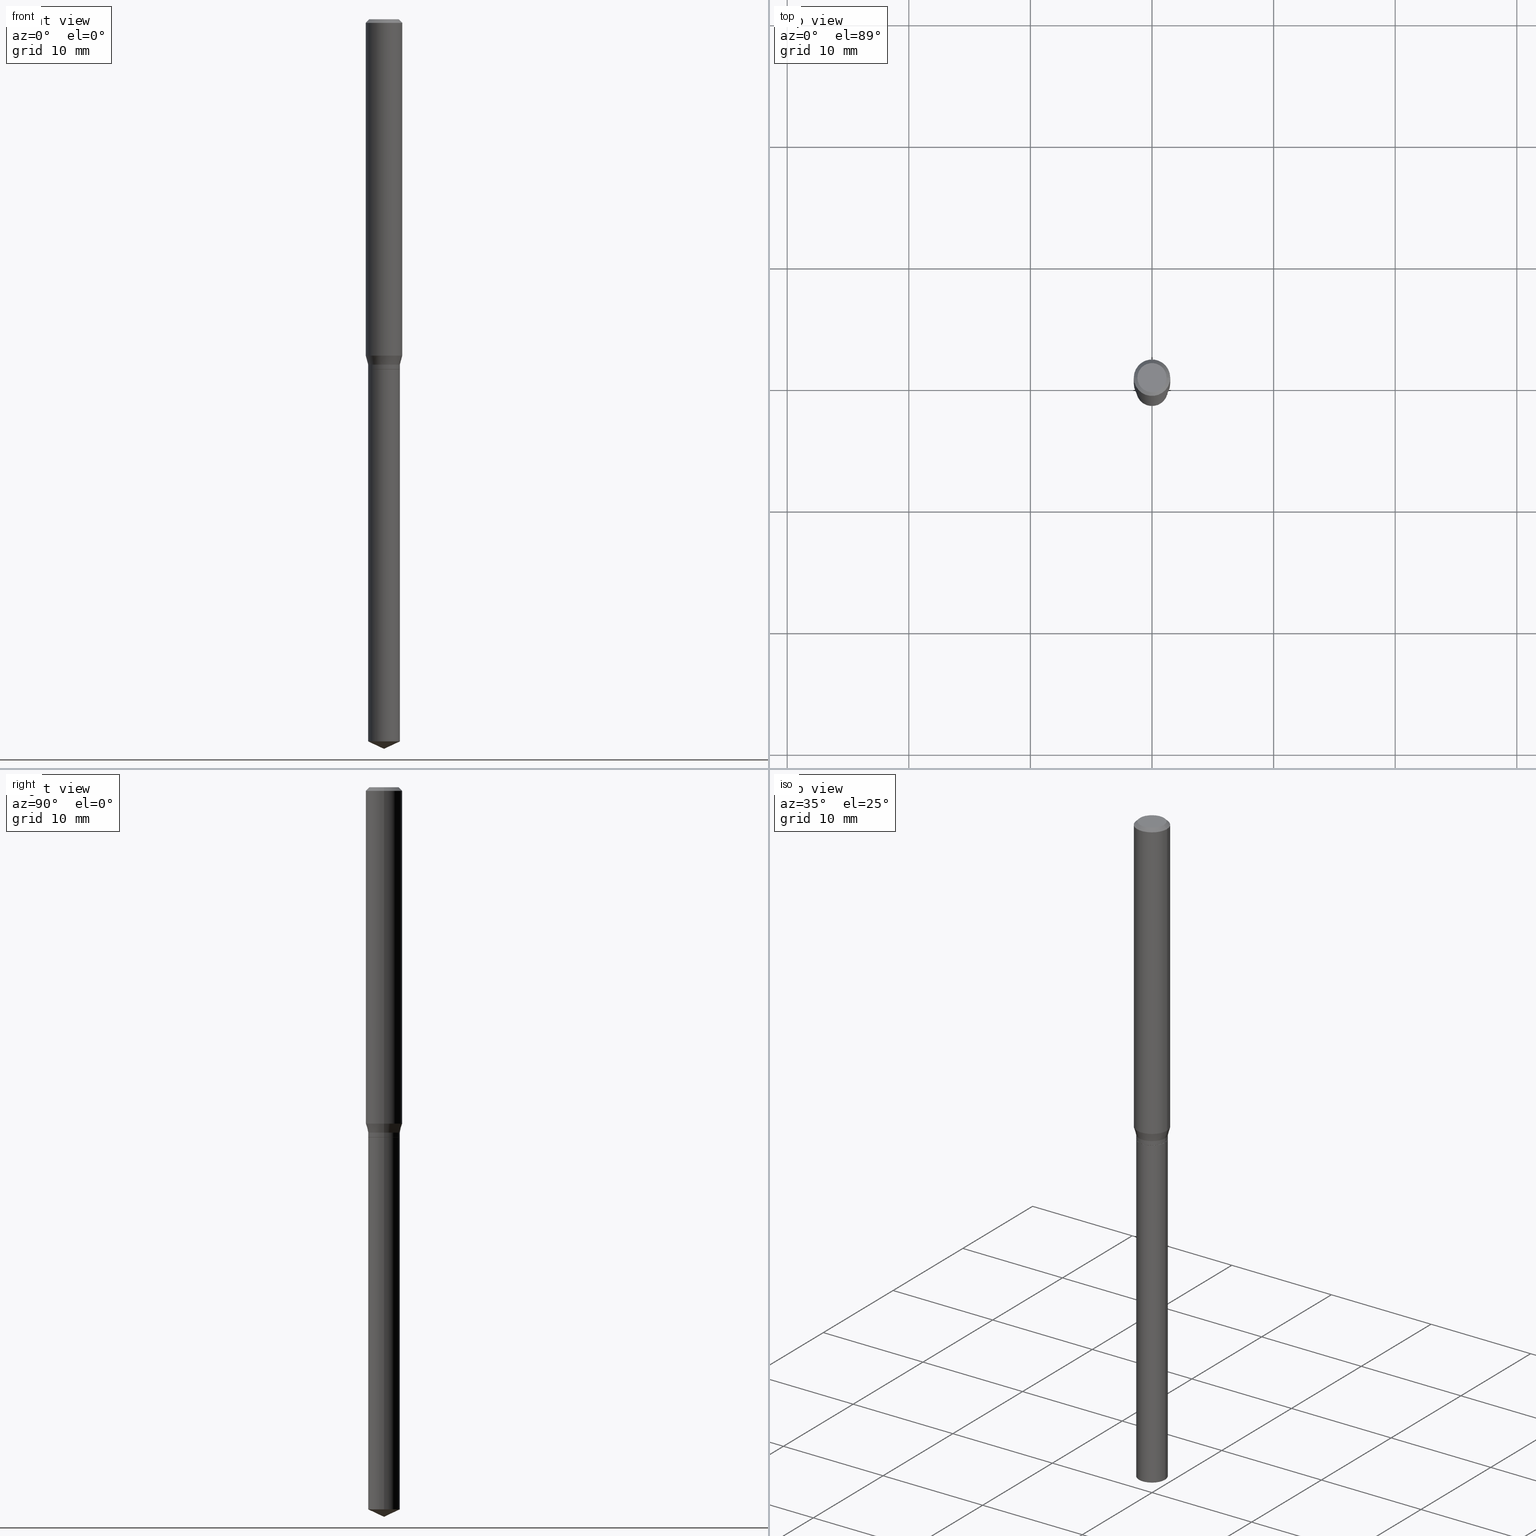
[diagram: canonical four-view strip — front | top / right | iso, engineering-drawing reading convention]
A machine part, canonical four-view strip (front | top / right | iso — engineering-drawing reading convention). The complete STEP part file that produces these views, byte-faithful:
ISO-10303-21;
HEADER;
FILE_DESCRIPTION (( 'STEP AP203' ),
    '1' );
FILE_NAME ('07673.STEP',
    '2024-04-24T00:47:42',
    ( '' ),
    ( '' ),
    'SwSTEP 2.0',
    'SolidWorks 2023',
    '' );
FILE_SCHEMA (( 'CONFIG_CONTROL_DESIGN' ));
ENDSEC;

DATA;
#1 = ORIENTED_EDGE ( 'NONE', *, *, #66, .T. ) ;
#2 = VECTOR ( 'NONE', #305, 39.37007874015748143 ) ;
#3 = ORIENTED_EDGE ( 'NONE', *, *, #355, .F. ) ;
#4 = CARTESIAN_POINT ( 'NONE',  ( 2.771694344930234709E-29, -3.957244949444822062E-15, -1.133400000000000185 ) ) ;
#5 = CARTESIAN_POINT ( 'NONE',  ( 0.000000000000000000, 0.000000000000000000, 0.000000000000000000 ) ) ;
#6 = DIRECTION ( 'NONE',  ( -2.445468806185136597E-29, 3.491481338843145583E-15, 1.000000000000000000 ) ) ;
#7 = FACE_OUTER_BOUND ( 'NONE', #271, .T. ) ;
#8 = ADVANCED_FACE ( 'NONE', ( #281 ), #90, .T. ) ;
#9 = AXIS2_PLACEMENT_3D ( 'NONE', #337, #448, #486 ) ;
#10 = CARTESIAN_POINT ( 'NONE',  ( -9.050161304213721862E-28, 1.292123180114298356E-13, 37.00787874015748002 ) ) ;
#11 = DIRECTION ( 'NONE',  ( -1.000000000000000000, 6.982962677686265922E-15, -4.876176775795935793E-29 ) ) ;
#12 = CARTESIAN_POINT ( 'NONE',  ( 5.718300963366841396E-29, -8.164218268900958475E-15, -2.338325047902463982 ) ) ;
#13 = AXIS2_PLACEMENT_3D ( 'NONE', #439, #17, #187 ) ;
#14 = SECURITY_CLASSIFICATION_LEVEL ( 'unclassified' ) ;
#15 = DIRECTION ( 'NONE',  ( 1.000000000000000000, -6.982962677686266711E-15, 4.876185090822587894E-29 ) ) ;
#16 = ORIENTED_EDGE ( 'NONE', *, *, #367, .F. ) ;
#17 = DIRECTION ( 'NONE',  ( -2.445468806185136597E-29, 3.491481338843145583E-15, 1.000000000000000000 ) ) ;
#18 = DIRECTION ( 'NONE',  ( 1.000000000000000000, -6.982962677686263555E-15, 0.000000000000000000 ) ) ;
#19 = VECTOR ( 'NONE', #476, 39.37007874015748854 ) ;
#20 = ORIENTED_EDGE ( 'NONE', *, *, #237, .F. ) ;
#21 = ORIENTED_EDGE ( 'NONE', *, *, #164, .T. ) ;
#22 = DIRECTION ( 'NONE',  ( -2.445468806185136877E-29, 3.491481338843145188E-15, 1.000000000000000000 ) ) ;
#23 = ORIENTED_EDGE ( 'NONE', *, *, #80, .T. ) ;
#24 = PRODUCT_RELATED_PRODUCT_CATEGORY ( 'detail', '', ( #234 ) ) ;
#25 = CARTESIAN_POINT ( 'NONE',  ( 0.05120000000000002327, -8.521745957998495027E-15, -2.338325047902463982 ) ) ;
#26 = DIRECTION ( 'NONE',  ( -2.445468806185136597E-29, 3.491481338843145583E-15, 1.000000000000000000 ) ) ;
#27 = DIRECTION ( 'NONE',  ( -2.445468806185136597E-29, 3.491481338843145583E-15, 1.000000000000000000 ) ) ;
#28 = EDGE_LOOP ( 'NONE', ( #64, #147, #146, #119 ) ) ;
#29 = AXIS2_PLACEMENT_3D ( 'NONE', #316, #425, #207 ) ;
#30 = CARTESIAN_POINT ( 'NONE',  ( -0.05120000000000000939, -5.697806598798429954E-15, -1.133900000000000352 ) ) ;
#31 = DIRECTION ( 'NONE',  ( -2.445468806185136597E-29, 3.491481338843145583E-15, 1.000000000000000000 ) ) ;
#32 = DIMENSIONAL_EXPONENTS ( 1.000000000000000000, 0.000000000000000000, 0.000000000000000000, 0.000000000000000000, 0.000000000000000000, 0.000000000000000000, 0.000000000000000000 ) ;
#33 = ORIENTED_EDGE ( 'NONE', *, *, #145, .F. ) ;
#34 = DIRECTION ( 'NONE',  ( 1.000000000000000000, 0.000000000000000000, 0.000000000000000000 ) ) ;
#35 = LOCAL_TIME ( 20, 47, 42.00000000000000000, #364 ) ;
#36 = CIRCLE ( 'NONE', #383, 0.05120000000000000939 ) ;
#37 = ORIENTED_EDGE ( 'NONE', *, *, #432, .T. ) ;
#38 = CIRCLE ( 'NONE', #9, 0.05070000000000000201 ) ;
#39 = FACE_OUTER_BOUND ( 'NONE', #28, .T. ) ;
#40 = CC_DESIGN_APPROVAL ( #91, ( #219 ) ) ;
#41 = CARTESIAN_POINT ( 'NONE',  ( 2.888098660104665518E-31, -4.123439461173782112E-17, -0.01181000000000007738 ) ) ;
#42 = PRODUCT_DEFINITION_FORMATION_WITH_SPECIFIED_SOURCE ( 'ANY', '', #234, .NOT_KNOWN. ) ;
#43 = DIRECTION ( 'NONE',  ( -2.445468806185136597E-29, 3.491481338843145583E-15, 1.000000000000000000 ) ) ;
#44 = MANIFOLD_SOLID_BREP ( 'Body-Move/Copy2[1]', #296 ) ;
#45 = MANIFOLD_SOLID_BREP ( 'Body-Move/Copy2[2]', #72 ) ;
#46 = ADVANCED_FACE ( 'NONE', ( #381 ), #275, .T. ) ;
#47 = ORIENTED_EDGE ( 'NONE', *, *, #289, .F. ) ;
#48 = PERSON_AND_ORGANIZATION ( #174, #88 ) ;
#49 = CC_DESIGN_PERSON_AND_ORGANIZATION_ASSIGNMENT ( #283, #358, ( #234 ) ) ;
#50 = APPROVAL_DATE_TIME ( #290, #327 ) ;
#51 = PERSON_AND_ORGANIZATION_ROLE ( 'creator' ) ;
#52 = CIRCLE ( 'NONE', #341, 0.04724000000000000421 ) ;
#53 = CARTESIAN_POINT ( 'NONE',  ( -0.05120000000000001633, -3.567435532761269015E-15, -1.133400000000000185 ) ) ;
#54 = CIRCLE ( 'NONE', #29, 0.05070000000000000201 ) ;
#55 = EDGE_CURVE ( 'NONE', #480, #446, #452, .T. ) ;
#56 = ADVANCED_FACE ( 'NONE', ( #455 ), #121, .T. ) ;
#57 = EDGE_CURVE ( 'NONE', #480, #81, #128, .T. ) ;
#58 = EDGE_LOOP ( 'NONE', ( #332, #47 ) ) ;
#59 = SHAPE_DEFINITION_REPRESENTATION ( #149, #224 ) ;
#60 = EDGE_LOOP ( 'NONE', ( #37, #206, #111, #232 ) ) ;
#61 = CIRCLE ( 'NONE', #92, 0.05905000000000013710 ) ;
#62 = ORIENTED_EDGE ( 'NONE', *, *, #142, .F. ) ;
#63 = DIRECTION ( 'NONE',  ( -2.445468806185136597E-29, 3.491481338843145583E-15, 1.000000000000000000 ) ) ;
#64 = ORIENTED_EDGE ( 'NONE', *, *, #55, .T. ) ;
#65 = FACE_OUTER_BOUND ( 'NONE', #113, .T. ) ;
#66 = EDGE_CURVE ( 'NONE', #246, #446, #422, .T. ) ;
#67 = CYLINDRICAL_SURFACE ( 'NONE', #418, 0.05120000000000000939 ) ;
#68 = LINE ( 'NONE', #373, #434 ) ;
#69 = VERTEX_POINT ( 'NONE', #387 ) ;
#70 = CC_DESIGN_APPROVAL ( #327, ( #42 ) ) ;
#71 = CARTESIAN_POINT ( 'NONE',  ( -0.05120000000000002327, -7.800420388191787803E-15, -2.338325047902463982 ) ) ;
#72 = CLOSED_SHELL ( 'NONE', ( #443, #89, #56, #77, #312, #46, #8, #348, #393, #105, #396, #201 ) ) ;
#73 = DIRECTION ( 'NONE',  ( 1.000000000000000000, -6.982962677686263555E-15, 0.000000000000000000 ) ) ;
#74 = CIRCLE ( 'NONE', #334, 0.05120000000000001633 ) ;
#75 = CC_DESIGN_PERSON_AND_ORGANIZATION_ASSIGNMENT ( #218, #51, ( #42 ) ) ;
#76 = CARTESIAN_POINT ( 'NONE',  ( -0.04724000000000000421, 3.504923541997677355E-16, -3.380025165670481712E-19 ) ) ;
#77 = ADVANCED_FACE ( 'NONE', ( #39 ), #156, .T. ) ;
#78 = FACE_OUTER_BOUND ( 'NONE', #240, .T. ) ;
#79 = ORIENTED_EDGE ( 'NONE', *, *, #388, .F. ) ;
#80 = EDGE_CURVE ( 'NONE', #195, #408, #109, .T. ) ;
#81 = VERTEX_POINT ( 'NONE', #357 ) ;
#82 = DIRECTION ( 'NONE',  ( 0.000000000000000000, 0.000000000000000000, 1.000000000000000000 ) ) ;
#83 = EDGE_LOOP ( 'NONE', ( #370, #440, #297, #79 ) ) ;
#84 = DIRECTION ( 'NONE',  ( -1.000000000000000000, 6.982962677686265922E-15, -4.876176775795935793E-29 ) ) ;
#85 = LINE ( 'NONE', #247, #110 ) ;
#86 = ORIENTED_EDGE ( 'NONE', *, *, #237, .T. ) ;
#87 = FACE_OUTER_BOUND ( 'NONE', #60, .T. ) ;
#88 = ORGANIZATION ( 'UNSPECIFIED', 'UNSPECIFIED', '' ) ;
#89 = ADVANCED_FACE ( 'NONE', ( #457 ), #127, .T. ) ;
#90 = CONICAL_SURFACE ( 'NONE', #317, 0.05120000000000000939, 0.2617993877991499074 ) ;
#91 = APPROVAL ( #140, 'UNSPECIFIED' ) ;
#92 = AXIS2_PLACEMENT_3D ( 'NONE', #180, #339, #300 ) ;
#93 = LINE ( 'NONE', #198, #188 ) ;
#94 = APPLICATION_CONTEXT ( 'configuration controlled 3d designs of mechanical parts and assemblies' ) ;
#95 = DESIGN_CONTEXT ( 'detailed design', #274, 'design' ) ;
#96 = COORDINATED_UNIVERSAL_TIME_OFFSET ( 5, 0, .BEHIND. ) ;
#97 = APPROVAL_ROLE ( '' ) ;
#98 = CARTESIAN_POINT ( 'NONE',  ( -9.050161304213721862E-28, 1.292123180114298356E-13, 37.00787874015748002 ) ) ;
#99 = DATE_AND_TIME ( #257, #176 ) ;
#100 = CIRCLE ( 'NONE', #377, 0.05120000000000000939 ) ;
#101 = AXIS2_PLACEMENT_3D ( 'NONE', #320, #122, #117 ) ;
#102 = EDGE_CURVE ( 'NONE', #374, #441, #36, .T. ) ;
#103 = EDGE_LOOP ( 'NONE', ( #236, #86 ) ) ;
#104 = LINE ( 'NONE', #266, #362 ) ;
#105 = ADVANCED_FACE ( 'NONE', ( #137 ), #181, .F. ) ;
#106 = CARTESIAN_POINT ( 'NONE',  ( 2.735256859718075615E-29, -3.905221877496058889E-15, -1.118500000000000050 ) ) ;
#107 = ORIENTED_EDGE ( 'NONE', *, *, #289, .T. ) ;
#108 = DIRECTION ( 'NONE',  ( -2.445468806185136597E-29, 3.491481338843145583E-15, 1.000000000000000000 ) ) ;
#109 = CIRCLE ( 'NONE', #467, 0.05905000000000000526 ) ;
#110 = VECTOR ( 'NONE', #400, 39.37007874015748854 ) ;
#111 = ORIENTED_EDGE ( 'NONE', *, *, #329, .F. ) ;
#112 =( LENGTH_UNIT ( ) NAMED_UNIT ( * ) SI_UNIT ( $, .METRE. ) );
#113 = EDGE_LOOP ( 'NONE', ( #294, #33, #338, #488 ) ) ;
#114 = LINE ( 'NONE', #307, #244 ) ;
#115 =( NAMED_UNIT ( * ) SI_UNIT ( $, .STERADIAN. ) SOLID_ANGLE_UNIT ( ) );
#116 = ORIENTED_EDGE ( 'NONE', *, *, #66, .F. ) ;
#117 = DIRECTION ( 'NONE',  ( 1.000000000000000000, -6.982962677686263555E-15, 0.000000000000000000 ) ) ;
#118 = DIRECTION ( 'NONE',  ( 1.000000000000000000, -6.982962677686263555E-15, 0.000000000000000000 ) ) ;
#119 = ORIENTED_EDGE ( 'NONE', *, *, #57, .F. ) ;
#120 = AXIS2_PLACEMENT_3D ( 'NONE', #106, #226, #18 ) ;
#121 = CYLINDRICAL_SURFACE ( 'NONE', #471, 0.05905000000000006771 ) ;
#122 = DIRECTION ( 'NONE',  ( -2.445468806185136597E-29, 3.491481338843145583E-15, 1.000000000000000000 ) ) ;
#123 = LOCAL_TIME ( 20, 47, 42.00000000000000000, #96 ) ;
#124 = ORIENTED_EDGE ( 'NONE', *, *, #367, .T. ) ;
#125 = DIRECTION ( 'NONE',  ( 2.438088387897960049E-29, -3.491481338843145188E-15, -1.000000000000000000 ) ) ;
#126 = APPROVAL ( #487, 'UNSPECIFIED' ) ;
#127 = CONICAL_SURFACE ( 'NONE', #148, 0.05905000000000000526, 0.7853981633974452814 ) ;
#128 = LINE ( 'NONE', #389, #361 ) ;
#129 = CARTESIAN_POINT ( 'NONE',  ( 6.605419282153479909E-30, -6.984032135442277648E-15, -1.133900000000000130 ) ) ;
#130 = DATE_AND_TIME ( #165, #185 ) ;
#131 = CC_DESIGN_DATE_AND_TIME_ASSIGNMENT ( #130, #285, ( #384 ) ) ;
#132 = CARTESIAN_POINT ( 'NONE',  ( 0.000000000000000000, 0.000000000000000000, 0.000000000000000000 ) ) ;
#133 = DIRECTION ( 'NONE',  ( 1.000000000000000000, -6.982962677686266711E-15, 4.876185090822587894E-29 ) ) ;
#134 = PERSON_AND_ORGANIZATION_ROLE ( 'creator' ) ;
#135 = CIRCLE ( 'NONE', #120, 0.05120000000000000939 ) ;
#136 = DIRECTION ( 'NONE',  ( -2.445468806185136597E-29, 3.491481338843145583E-15, 1.000000000000000000 ) ) ;
#137 = FACE_OUTER_BOUND ( 'NONE', #103, .T. ) ;
#138 = DATE_AND_TIME ( #220, #123 ) ;
#139 = CARTESIAN_POINT ( 'NONE',  ( 0.05120000000000001633, -4.314772638542359403E-15, -1.133400000000000185 ) ) ;
#140 = APPROVAL_STATUS ( 'not_yet_approved' ) ;
#141 = AXIS2_PLACEMENT_3D ( 'NONE', #313, #278, #241 ) ;
#142 = EDGE_CURVE ( 'NONE', #69, #477, #171, .T. ) ;
#143 = CARTESIAN_POINT ( 'NONE',  ( 2.771694344930234709E-29, -3.957244949444822062E-15, -1.133400000000000185 ) ) ;
#144 = ORIENTED_EDGE ( 'NONE', *, *, #154, .T. ) ;
#145 = EDGE_CURVE ( 'NONE', #306, #366, #52, .T. ) ;
#146 = ORIENTED_EDGE ( 'NONE', *, *, #262, .F. ) ;
#147 = ORIENTED_EDGE ( 'NONE', *, *, #208, .T. ) ;
#148 = AXIS2_PLACEMENT_3D ( 'NONE', #166, #319, #462 ) ;
#149 = PRODUCT_DEFINITION_SHAPE ( 'NONE', 'NONE',  #219 ) ;
#150 = LENGTH_MEASURE_WITH_UNIT ( LENGTH_MEASURE( 0.02539999999999999897 ), #112 );
#151 = CIRCLE ( 'NONE', #423, 0.05905000000000000526 ) ;
#152 = ORIENTED_EDGE ( 'NONE', *, *, #57, .T. ) ;
#153 = ORIENTED_EDGE ( 'NONE', *, *, #170, .T. ) ;
#154 = EDGE_CURVE ( 'NONE', #477, #265, #100, .T. ) ;
#155 = ORIENTED_EDGE ( 'NONE', *, *, #157, .T. ) ;
#156 = CONICAL_SURFACE ( 'NONE', #458, 0.05120000000000000939, 0.2617993877991499074 ) ;
#157 = EDGE_CURVE ( 'NONE', #243, #480, #68, .T. ) ;
#158 = ORIENTED_EDGE ( 'NONE', *, *, #154, .F. ) ;
#159 = AXIS2_PLACEMENT_3D ( 'NONE', #468, #136, #15 ) ;
#160 = MECHANICAL_CONTEXT ( 'NONE', #94, 'mechanical' ) ;
#161 = DIRECTION ( 'NONE',  ( 0.2588190451025211836, 1.565188264969622559E-15, 0.9659258262890679791 ) ) ;
#162 = CARTESIAN_POINT ( 'NONE',  ( -0.05905000000000000526, -1.502508386517860213E-15, -0.01181000000000007738 ) ) ;
#163 = DIRECTION ( 'NONE',  ( -2.445468806185136597E-29, 3.491481338843145583E-15, 1.000000000000000000 ) ) ;
#164 = EDGE_CURVE ( 'NONE', #246, #243, #74, .T. ) ;
#165 = CALENDAR_DATE ( 2024, 23, 4 ) ;
#166 = CARTESIAN_POINT ( 'NONE',  ( 2.888098660104665518E-31, -4.123439461173782112E-17, -0.01181000000000007738 ) ) ;
#167 = AXIS2_PLACEMENT_3D ( 'NONE', #10, #426, #239 ) ;
#168 = CC_DESIGN_SECURITY_CLASSIFICATION ( #384, ( #42 ) ) ;
#169 = LINE ( 'NONE', #321, #392 ) ;
#170 = EDGE_CURVE ( 'NONE', #446, #480, #135, .T. ) ;
#171 = LINE ( 'NONE', #463, #280 ) ;
#172 = ORIENTED_EDGE ( 'NONE', *, *, #355, .T. ) ;
#173 = EDGE_CURVE ( 'NONE', #303, #246, #194, .T. ) ;
#174 = PERSON ( 'UNSPECIFIED', 'UNSPECIFIED', 'UNSPECIFIED', ('UNSPECIFIED'), ('UNSPECIFIED'), ('UNSPECIFIED') ) ;
#175 = EDGE_CURVE ( 'NONE', #309, #408, #284, .T. ) ;
#176 = LOCAL_TIME ( 20, 47, 42.00000000000000000, #431 ) ;
#177 = CYLINDRICAL_SURFACE ( 'NONE', #428, 0.05120000000000000939 ) ;
#178 = PERSON_AND_ORGANIZATION ( #174, #88 ) ;
#179 = AXIS2_PLACEMENT_3D ( 'NONE', #390, #43, #288 ) ;
#180 = CARTESIAN_POINT ( 'NONE',  ( 2.663612941128963987E-29, -3.802933349356663262E-15, -1.089203401160584006 ) ) ;
#181 = PLANE ( 'NONE',  #482 ) ;
#182 = PERSON_AND_ORGANIZATION_ROLE ( 'classification_officer' ) ;
#183 = CARTESIAN_POINT ( 'NONE',  ( 5.776686413970529753E-29, -8.247577218615279626E-15, -2.362200000000000077 ) ) ;
#184 = ORIENTED_EDGE ( 'NONE', *, *, #102, .T. ) ;
#185 = LOCAL_TIME ( 20, 47, 42.00000000000000000, #395 ) ;
#186 = ADVANCED_FACE ( 'NONE', ( #451 ), #203, .T. ) ;
#187 = DIRECTION ( 'NONE',  ( 1.000000000000000000, -6.982962677686263555E-15, 0.000000000000000000 ) ) ;
#188 = VECTOR ( 'NONE', #217, 39.37007874015748143 ) ;
#189 = EDGE_LOOP ( 'NONE', ( #172, #456, #16, #464 ) ) ;
#190 = DIRECTION ( 'NONE',  ( 1.000000000000000000, -6.982962677686263555E-15, 0.000000000000000000 ) ) ;
#191 = DIRECTION ( 'NONE',  ( -2.445468806185136877E-29, 3.491481338843145188E-15, 1.000000000000000000 ) ) ;
#192 = EDGE_LOOP ( 'NONE', ( #410, #1, #382, #342 ) ) ;
#193 = CARTESIAN_POINT ( 'NONE',  ( 0.05120000000000000939, -4.262749566593595442E-15, -1.118500000000000050 ) ) ;
#194 = LINE ( 'NONE', #328, #19 ) ;
#195 = VERTEX_POINT ( 'NONE', #273 ) ;
#196 = ADVANCED_FACE ( 'NONE', ( #78 ), #409, .T. ) ;
#197 = CALENDAR_DATE ( 2024, 23, 4 ) ;
#198 = CARTESIAN_POINT ( 'NONE',  ( 0.05905000000000006771, -4.123439461173745257E-16, 2.879382386107503723E-30 ) ) ;
#199 = CIRCLE ( 'NONE', #318, 0.05905000000000013710 ) ;
#200 = ORIENTED_EDGE ( 'NONE', *, *, #335, .T. ) ;
#201 = ADVANCED_FACE ( 'NONE', ( #248 ), #261, .T. ) ;
#202 = DIRECTION ( 'NONE',  ( -1.000000000000000000, 6.982962677686267499E-15, 0.000000000000000000 ) ) ;
#203 = CYLINDRICAL_SURFACE ( 'NONE', #231, 0.05120000000000000939 ) ;
#204 = EDGE_LOOP ( 'NONE', ( #405, #144, #235, #483 ) ) ;
#205 = CARTESIAN_POINT ( 'NONE',  ( 0.05070000000000000201, -4.313026897872937900E-15, -1.133900000000000352 ) ) ;
#206 = ORIENTED_EDGE ( 'NONE', *, *, #173, .T. ) ;
#207 = DIRECTION ( 'NONE',  ( 1.000000000000000000, -6.982962677686263555E-15, 0.000000000000000000 ) ) ;
#208 = EDGE_CURVE ( 'NONE', #446, #309, #169, .T. ) ;
#209 = CARTESIAN_POINT ( 'NONE',  ( -0.05120000000000000939, 3.637978807091713619E-16, -2.518494766210512278E-30 ) ) ;
#210 = CIRCLE ( 'NONE', #469, 0.05120000000000001633 ) ;
#211 = CARTESIAN_POINT ( 'NONE',  ( 2.735256859718075615E-29, -3.905221877496058889E-15, -1.118500000000000050 ) ) ;
#212 = DIRECTION ( 'NONE',  ( -2.438088387897960049E-29, 3.491481338843145188E-15, 1.000000000000000000 ) ) ;
#213 = DIRECTION ( 'NONE',  ( -2.445468806185136597E-29, 3.491481338843145583E-15, 1.000000000000000000 ) ) ;
#214 = DIRECTION ( 'NONE',  ( 1.000000000000000000, -6.982962677686265922E-15, 4.876176775795935793E-29 ) ) ;
#215 = CARTESIAN_POINT ( 'NONE',  ( 0.000000000000000000, 0.000000000000000000, 0.000000000000000000 ) ) ;
#216 = ORIENTED_EDGE ( 'NONE', *, *, #245, .T. ) ;
#217 = DIRECTION ( 'NONE',  ( -2.445468806185136877E-29, 3.491481338843145188E-15, 1.000000000000000000 ) ) ;
#218 = PERSON_AND_ORGANIZATION ( #174, #88 ) ;
#219 = PRODUCT_DEFINITION ( 'UNKNOWN', '', #42, #95 ) ;
#220 = CALENDAR_DATE ( 2024, 23, 4 ) ;
#221 = CONICAL_SURFACE ( 'NONE', #484, 0.05905000000000000526, 0.7853981633974452814 ) ;
#222 = LINE ( 'NONE', #363, #311 ) ;
#223 = PERSON_AND_ORGANIZATION ( #174, #88 ) ;
#224 = ADVANCED_BREP_SHAPE_REPRESENTATION ( '07673', ( #44, #45, #359 ), #445 ) ;
#225 = ORIENTED_EDGE ( 'NONE', *, *, #208, .F. ) ;
#226 = DIRECTION ( 'NONE',  ( -2.445468806185136597E-29, 3.491481338843145583E-15, 1.000000000000000000 ) ) ;
#227 = ORIENTED_EDGE ( 'NONE', *, *, #465, .F. ) ;
#228 = EDGE_CURVE ( 'NONE', #81, #195, #93, .T. ) ;
#229 = DIRECTION ( 'NONE',  ( 1.000000000000000000, -6.982962677686266711E-15, 4.876176775795936353E-29 ) ) ;
#230 = CARTESIAN_POINT ( 'NONE',  ( 2.663612941128963987E-29, -3.802933349356663262E-15, -1.089203401160584006 ) ) ;
#231 = AXIS2_PLACEMENT_3D ( 'NONE', #253, #391, #118 ) ;
#232 = ORIENTED_EDGE ( 'NONE', *, *, #335, .F. ) ;
#233 = CARTESIAN_POINT ( 'NONE',  ( 2.888098660104665518E-31, -4.123439461173782112E-17, -0.01181000000000007738 ) ) ;
#234 = PRODUCT ( '07673', '07673', '', ( #160 ) ) ;
#235 = ORIENTED_EDGE ( 'NONE', *, *, #475, .T. ) ;
#236 = ORIENTED_EDGE ( 'NONE', *, *, #145, .T. ) ;
#237 = EDGE_CURVE ( 'NONE', #366, #306, #326, .T. ) ;
#238 = CARTESIAN_POINT ( 'NONE',  ( 2.735256859718075615E-29, -3.905221877496058889E-15, -1.118500000000000050 ) ) ;
#239 = DIRECTION ( 'NONE',  ( 1.000000000000000000, -6.982962677686266711E-15, 0.000000000000000000 ) ) ;
#240 = EDGE_LOOP ( 'NONE', ( #269, #404, #3 ) ) ;
#241 = DIRECTION ( 'NONE',  ( 1.000000000000000000, -6.982962677686267499E-15, 4.876176775795935232E-29 ) ) ;
#242 = CARTESIAN_POINT ( 'NONE',  ( -0.05120000000000000939, -3.567435532761269015E-15, -1.118500000000000050 ) ) ;
#243 = VERTEX_POINT ( 'NONE', #139 ) ;
#244 = VECTOR ( 'NONE', #450, 39.37007874015748143 ) ;
#245 = EDGE_CURVE ( 'NONE', #69, #265, #258, .T. ) ;
#246 = VERTEX_POINT ( 'NONE', #53 ) ;
#247 = CARTESIAN_POINT ( 'NONE',  ( 0.05070000000000000201, -4.313026897872937900E-15, -1.133900000000000352 ) ) ;
#248 = FACE_OUTER_BOUND ( 'NONE', #322, .T. ) ;
#249 = ADVANCED_FACE ( 'NONE', ( #330 ), #256, .T. ) ;
#250 = DIRECTION ( 'NONE',  ( 2.438088387897960049E-29, -3.491481338843145188E-15, -1.000000000000000000 ) ) ;
#251 = APPROVAL_PERSON_ORGANIZATION ( #429, #327, #97 ) ;
#252 = DIRECTION ( 'NONE',  ( -2.445468806185136597E-29, 3.491481338843145583E-15, 1.000000000000000000 ) ) ;
#253 = CARTESIAN_POINT ( 'NONE',  ( 2.772917079333326390E-29, -3.958990690114243565E-15, -1.133900000000000130 ) ) ;
#254 = VECTOR ( 'NONE', #314, 39.37007874015748143 ) ;
#255 = CARTESIAN_POINT ( 'NONE',  ( 8.265746106709734507E-48, -1.180129479067563789E-33, -3.380025165646692144E-19 ) ) ;
#256 = CONICAL_SURFACE ( 'NONE', #460, 84.42940631927434936, 1.134464013796316006 ) ;
#257 = CALENDAR_DATE ( 2024, 23, 4 ) ;
#258 = LINE ( 'NONE', #183, #268 ) ;
#259 = EDGE_CURVE ( 'NONE', #306, #408, #222, .T. ) ;
#260 = DIRECTION ( 'NONE',  ( 1.000000000000000000, -6.982962677686266711E-15, 0.000000000000000000 ) ) ;
#261 = CONICAL_SURFACE ( 'NONE', #179, 0.05070000000000000201, 0.7853981633972860754 ) ;
#262 = EDGE_CURVE ( 'NONE', #81, #309, #61, .T. ) ;
#263 = VERTEX_POINT ( 'NONE', #205 ) ;
#264 = DIRECTION ( 'NONE',  ( 1.000000000000000000, -6.982962677686267499E-15, 0.000000000000000000 ) ) ;
#265 = VERTEX_POINT ( 'NONE', #25 ) ;
#266 = CARTESIAN_POINT ( 'NONE',  ( 0.05905000000000000526, -4.463468013801467941E-16, -0.01181000000000007738 ) ) ;
#267 = DIRECTION ( 'NONE',  ( 1.000000000000000000, -6.982962677686263555E-15, 0.000000000000000000 ) ) ;
#268 = VECTOR ( 'NONE', #291, 39.37007874015748143 ) ;
#269 = ORIENTED_EDGE ( 'NONE', *, *, #245, .F. ) ;
#270 = DIRECTION ( 'NONE',  ( -2.445468806185136597E-29, 3.491481338843145583E-15, 1.000000000000000000 ) ) ;
#271 = EDGE_LOOP ( 'NONE', ( #124, #184 ) ) ;
#272 = CARTESIAN_POINT ( 'NONE',  ( 2.772917079333326950E-29, -3.958990690114243565E-15, -1.133900000000000352 ) ) ;
#273 = CARTESIAN_POINT ( 'NONE',  ( 0.05905000000000000526, -4.535783407291119586E-16, -0.01181000000000007738 ) ) ;
#274 = APPLICATION_CONTEXT ( 'configuration controlled 3d designs of mechanical parts and assemblies' ) ;
#275 = CYLINDRICAL_SURFACE ( 'NONE', #141, 0.05120000000000000939 ) ;
#276 = DIRECTION ( 'NONE',  ( 1.000000000000000000, -6.982962677686272233E-15, 0.000000000000000000 ) ) ;
#277 = DIRECTION ( 'NONE',  ( 1.000000000000000000, -6.982962677686266711E-15, 4.876176775795936353E-29 ) ) ;
#278 = DIRECTION ( 'NONE',  ( -2.445468806185136597E-29, 3.491481338843145583E-15, 1.000000000000000000 ) ) ;
#279 = CARTESIAN_POINT ( 'NONE',  ( 0.05120000000000000939, -4.316518379211780118E-15, -1.133900000000000352 ) ) ;
#280 = VECTOR ( 'NONE', #287, 39.37007874015748143 ) ;
#281 = FACE_OUTER_BOUND ( 'NONE', #485, .T. ) ;
#282 = AXIS2_PLACEMENT_3D ( 'NONE', #129, #125, #84 ) ;
#283 = PERSON_AND_ORGANIZATION ( #174, #88 ) ;
#284 = LINE ( 'NONE', #397, #2 ) ;
#285 = DATE_TIME_ROLE ( 'classification_date' ) ;
#286 = CARTESIAN_POINT ( 'NONE',  ( 4.132873053354867254E-48, -5.900647395337818946E-34, -1.690012582823346072E-19 ) ) ;
#287 = DIRECTION ( 'NONE',  ( -0.9063077870366507138, 7.915267918739014631E-15, 0.4226182617406978315 ) ) ;
#288 = DIRECTION ( 'NONE',  ( 1.000000000000000000, -6.982962677686263555E-15, 0.000000000000000000 ) ) ;
#289 = EDGE_CURVE ( 'NONE', #303, #263, #38, .T. ) ;
#290 = DATE_AND_TIME ( #399, #35 ) ;
#291 = DIRECTION ( 'NONE',  ( 0.9063077870366507138, -4.853149677051390623E-15, 0.4226182617406978315 ) ) ;
#292 = PERSON_AND_ORGANIZATION_ROLE ( 'design_supplier' ) ;
#293 = UNCERTAINTY_MEASURE_WITH_UNIT (LENGTH_MEASURE( 1.000000000000000082E-05 ), #301, 'distance_accuracy_value', 'NONE');
#294 = ORIENTED_EDGE ( 'NONE', *, *, #372, .F. ) ;
#295 = ORIENTED_EDGE ( 'NONE', *, *, #259, .F. ) ;
#296 = CLOSED_SHELL ( 'NONE', ( #490, #196, #249, #186, #414 ) ) ;
#297 = ORIENTED_EDGE ( 'NONE', *, *, #228, .T. ) ;
#298 = CARTESIAN_POINT ( 'NONE',  ( 2.772917079333326950E-29, -3.958990690114243565E-15, -1.133900000000000352 ) ) ;
#299 = EDGE_CURVE ( 'NONE', #477, #374, #114, .T. ) ;
#300 = DIRECTION ( 'NONE',  ( 1.000000000000000000, -6.982962677686264344E-15, 0.000000000000000000 ) ) ;
#301 =( CONVERSION_BASED_UNIT ( 'INCH', #150 ) LENGTH_UNIT ( ) NAMED_UNIT ( #32 ) );
#302 = AXIS2_PLACEMENT_3D ( 'NONE', #298, #108, #190 ) ;
#303 = VERTEX_POINT ( 'NONE', #417 ) ;
#304 = LINE ( 'NONE', #478, #379 ) ;
#305 = DIRECTION ( 'NONE',  ( -2.445468806185136877E-29, 3.491481338843145188E-15, 1.000000000000000000 ) ) ;
#306 = VERTEX_POINT ( 'NONE', #76 ) ;
#307 = CARTESIAN_POINT ( 'NONE',  ( -0.05120000000000000939, -3.595192809405072105E-15, -1.133900000000000130 ) ) ;
#308 = DATE_AND_TIME ( #197, #407 ) ;
#309 = VERTEX_POINT ( 'NONE', #454 ) ;
#310 = COORDINATED_UNIVERSAL_TIME_OFFSET ( 5, 0, .BEHIND. ) ;
#311 = VECTOR ( 'NONE', #401, 39.37007874015748143 ) ;
#312 = ADVANCED_FACE ( 'NONE', ( #356 ), #177, .T. ) ;
#313 = CARTESIAN_POINT ( 'NONE',  ( 0.000000000000000000, 0.000000000000000000, 0.000000000000000000 ) ) ;
#314 = DIRECTION ( 'NONE',  ( -2.445468806185136877E-29, 3.491481338843145188E-15, 1.000000000000000000 ) ) ;
#315 = DIRECTION ( 'NONE',  ( 1.000000000000000000, -6.982962677686267499E-15, 0.000000000000000000 ) ) ;
#316 = CARTESIAN_POINT ( 'NONE',  ( 2.772917079333327511E-29, -3.958990690114244354E-15, -1.133900000000000352 ) ) ;
#317 = AXIS2_PLACEMENT_3D ( 'NONE', #347, #6, #380 ) ;
#318 = AXIS2_PLACEMENT_3D ( 'NONE', #230, #26, #340 ) ;
#319 = DIRECTION ( 'NONE',  ( 2.445468806185136597E-29, -3.491481338843145583E-15, -1.000000000000000000 ) ) ;
#320 = CARTESIAN_POINT ( 'NONE',  ( 2.772917079333327511E-29, -3.958990690114244354E-15, -1.133900000000000352 ) ) ;
#321 = CARTESIAN_POINT ( 'NONE',  ( -0.05120000000000000939, -3.541423996786887428E-15, -1.118500000000000050 ) ) ;
#322 = EDGE_LOOP ( 'NONE', ( #411, #107, #200, #474 ) ) ;
#323 = CC_DESIGN_PERSON_AND_ORGANIZATION_ASSIGNMENT ( #48, #292, ( #42 ) ) ;
#324 = APPROVAL_DATE_TIME ( #138, #91 ) ;
#325 = CARTESIAN_POINT ( 'NONE',  ( 0.000000000000000000, 0.000000000000000000, 0.000000000000000000 ) ) ;
#326 = CIRCLE ( 'NONE', #159, 0.04724000000000000421 ) ;
#327 = APPROVAL ( #360, 'UNSPECIFIED' ) ;
#328 = CARTESIAN_POINT ( 'NONE',  ( -0.05070000000000000201, -3.598745523083873003E-15, -1.133900000000000352 ) ) ;
#329 = EDGE_CURVE ( 'NONE', #243, #246, #210, .T. ) ;
#330 = FACE_OUTER_BOUND ( 'NONE', #449, .T. ) ;
#331 = CC_DESIGN_APPROVAL ( #126, ( #384 ) ) ;
#332 = ORIENTED_EDGE ( 'NONE', *, *, #432, .F. ) ;
#333 = DIRECTION ( 'NONE',  ( -2.445468806185136597E-29, 3.491481338843145583E-15, 1.000000000000000000 ) ) ;
#334 = AXIS2_PLACEMENT_3D ( 'NONE', #143, #479, #437 ) ;
#335 = EDGE_CURVE ( 'NONE', #263, #243, #85, .T. ) ;
#336 = ORIENTED_EDGE ( 'NONE', *, *, #175, .T. ) ;
#337 = CARTESIAN_POINT ( 'NONE',  ( 2.772917079333327511E-29, -3.958990690114244354E-15, -1.133900000000000352 ) ) ;
#338 = ORIENTED_EDGE ( 'NONE', *, *, #259, .T. ) ;
#339 = DIRECTION ( 'NONE',  ( -2.445468806185136597E-29, 3.491481338843145583E-15, 1.000000000000000000 ) ) ;
#340 = DIRECTION ( 'NONE',  ( 1.000000000000000000, -6.982962677686264344E-15, 0.000000000000000000 ) ) ;
#341 = AXIS2_PLACEMENT_3D ( 'NONE', #255, #394, #133 ) ;
#342 = ORIENTED_EDGE ( 'NONE', *, *, #157, .F. ) ;
#343 = APPROVAL_DATE_TIME ( #308, #126 ) ;
#344 = EDGE_LOOP ( 'NONE', ( #350, #336, #365, #351 ) ) ;
#345 = FACE_OUTER_BOUND ( 'NONE', #58, .T. ) ;
#346 = APPROVAL_PERSON_ORGANIZATION ( #353, #91, #398 ) ;
#347 = CARTESIAN_POINT ( 'NONE',  ( 2.735256859718075615E-29, -3.905221877496058889E-15, -1.118500000000000050 ) ) ;
#348 = ADVANCED_FACE ( 'NONE', ( #466 ), #436, .T. ) ;
#349 = APPLICATION_PROTOCOL_DEFINITION ( 'international standard', 'config_control_design', 1994, #94 ) ;
#350 = ORIENTED_EDGE ( 'NONE', *, *, #262, .T. ) ;
#351 = ORIENTED_EDGE ( 'NONE', *, *, #228, .F. ) ;
#352 = PLANE ( 'NONE',  #459 ) ;
#353 = PERSON_AND_ORGANIZATION ( #174, #88 ) ;
#354 = DIRECTION ( 'NONE',  ( 1.000000000000000000, -6.982962677686263555E-15, 0.000000000000000000 ) ) ;
#355 = EDGE_CURVE ( 'NONE', #265, #477, #442, .T. ) ;
#356 = FACE_OUTER_BOUND ( 'NONE', #192, .T. ) ;
#357 = CARTESIAN_POINT ( 'NONE',  ( 0.05905000000000013710, -4.215277295474038182E-15, -1.089203401160584006 ) ) ;
#358 = PERSON_AND_ORGANIZATION_ROLE ( 'design_owner' ) ;
#359 = AXIS2_PLACEMENT_3D ( 'NONE', #215, #82, #34 ) ;
#360 = APPROVAL_STATUS ( 'not_yet_approved' ) ;
#361 = VECTOR ( 'NONE', #161, 39.37007874015748854 ) ;
#362 = VECTOR ( 'NONE', #412, 39.37007874015748143 ) ;
#363 = CARTESIAN_POINT ( 'NONE',  ( -0.05905000000000000526, 3.711095515056362547E-16, -0.01181000000000007738 ) ) ;
#364 = COORDINATED_UNIVERSAL_TIME_OFFSET ( 5, 0, .BEHIND. ) ;
#365 = ORIENTED_EDGE ( 'NONE', *, *, #80, .F. ) ;
#366 = VERTEX_POINT ( 'NONE', #447 ) ;
#367 = EDGE_CURVE ( 'NONE', #441, #374, #435, .T. ) ;
#368 = CARTESIAN_POINT ( 'NONE',  ( 2.772917079333326390E-29, -3.958990690114243565E-15, -1.133900000000000130 ) ) ;
#369 = CC_DESIGN_PERSON_AND_ORGANIZATION_ASSIGNMENT ( #178, #134, ( #219 ) ) ;
#370 = ORIENTED_EDGE ( 'NONE', *, *, #175, .F. ) ;
#371 = DIRECTION ( 'NONE',  ( 2.445468806185136597E-29, -3.491481338843145583E-15, -1.000000000000000000 ) ) ;
#372 = EDGE_CURVE ( 'NONE', #366, #195, #104, .T. ) ;
#373 = CARTESIAN_POINT ( 'NONE',  ( 0.05120000000000000939, -3.575276890975369471E-16, 2.496602509207519384E-30 ) ) ;
#374 = VERTEX_POINT ( 'NONE', #30 ) ;
#375 = CARTESIAN_POINT ( 'NONE',  ( 2.888098660104665518E-31, -4.123439461173782112E-17, -0.01181000000000007738 ) ) ;
#376 = DIRECTION ( 'NONE',  ( 1.000000000000000000, -6.982962677686263555E-15, 0.000000000000000000 ) ) ;
#377 = AXIS2_PLACEMENT_3D ( 'NONE', #12, #27, #376 ) ;
#378 = EDGE_LOOP ( 'NONE', ( #20, #453, #23, #295 ) ) ;
#379 = VECTOR ( 'NONE', #22, 39.37007874015748143 ) ;
#380 = DIRECTION ( 'NONE',  ( 1.000000000000000000, -6.982962677686263555E-15, 0.000000000000000000 ) ) ;
#381 = FACE_OUTER_BOUND ( 'NONE', #438, .T. ) ;
#382 = ORIENTED_EDGE ( 'NONE', *, *, #55, .F. ) ;
#383 = AXIS2_PLACEMENT_3D ( 'NONE', #272, #416, #73 ) ;
#384 = SECURITY_CLASSIFICATION ( '', '', #14 ) ;
#385 = APPLICATION_PROTOCOL_DEFINITION ( 'international standard', 'config_control_design', 1994, #274 ) ;
#386 = AXIS2_PLACEMENT_3D ( 'NONE', #132, #333, #229 ) ;
#387 = CARTESIAN_POINT ( 'NONE',  ( 5.776686413970529753E-29, -8.247577218615279626E-15, -2.362200000000000077 ) ) ;
#388 = EDGE_CURVE ( 'NONE', #408, #195, #151, .T. ) ;
#389 = CARTESIAN_POINT ( 'NONE',  ( 0.05120000000000000939, -4.262749566593595442E-15, -1.118500000000000050 ) ) ;
#390 = CARTESIAN_POINT ( 'NONE',  ( 2.772917079333327511E-29, -3.958990690114244354E-15, -1.133900000000000352 ) ) ;
#391 = DIRECTION ( 'NONE',  ( -2.445468806185136597E-29, 3.491481338843145583E-15, 1.000000000000000000 ) ) ;
#392 = VECTOR ( 'NONE', #427, 39.37007874015748854 ) ;
#393 = ADVANCED_FACE ( 'NONE', ( #65 ), #221, .T. ) ;
#394 = DIRECTION ( 'NONE',  ( -2.445468806185136597E-29, 3.491481338843145583E-15, 1.000000000000000000 ) ) ;
#395 = COORDINATED_UNIVERSAL_TIME_OFFSET ( 5, 0, .BEHIND. ) ;
#396 = ADVANCED_FACE ( 'NONE', ( #345 ), #352, .F. ) ;
#397 = CARTESIAN_POINT ( 'NONE',  ( -0.05905000000000006771, 4.195754854663396409E-16, -2.904631170795525045E-30 ) ) ;
#398 = APPROVAL_ROLE ( '' ) ;
#399 = CALENDAR_DATE ( 2024, 23, 4 ) ;
#400 = DIRECTION ( 'NONE',  ( 0.7071067811864326647, -2.468850131081054837E-15, 0.7071067811866621478 ) ) ;
#401 = DIRECTION ( 'NONE',  ( -0.7071067811865453523, 2.468850131082234184E-15, -0.7071067811865496822 ) ) ;
#402 = DATE_TIME_ROLE ( 'creation_date' ) ;
#403 = CONICAL_SURFACE ( 'NONE', #101, 0.05070000000000000201, 0.7853981633972860754 ) ;
#404 = ORIENTED_EDGE ( 'NONE', *, *, #142, .T. ) ;
#405 = ORIENTED_EDGE ( 'NONE', *, *, #299, .F. ) ;
#406 = CC_DESIGN_DATE_AND_TIME_ASSIGNMENT ( #99, #402, ( #219 ) ) ;
#407 = LOCAL_TIME ( 20, 47, 42.00000000000000000, #310 ) ;
#408 = VERTEX_POINT ( 'NONE', #162 ) ;
#409 = CONICAL_SURFACE ( 'NONE', #167, 84.42940631927434936, 1.134464013796316006 ) ;
#410 = ORIENTED_EDGE ( 'NONE', *, *, #329, .T. ) ;
#411 = ORIENTED_EDGE ( 'NONE', *, *, #173, .F. ) ;
#412 = DIRECTION ( 'NONE',  ( 0.7071067811865453523, -7.319954787623248157E-15, -0.7071067811865496822 ) ) ;
#413 = APPROVAL_ROLE ( '' ) ;
#414 = ADVANCED_FACE ( 'NONE', ( #7 ), #489, .F. ) ;
#415 = AXIS2_PLACEMENT_3D ( 'NONE', #238, #31, #419 ) ;
#416 = DIRECTION ( 'NONE',  ( -2.445468806185136597E-29, 3.491481338843145583E-15, 1.000000000000000000 ) ) ;
#417 = CARTESIAN_POINT ( 'NONE',  ( -0.05070000000000000201, -3.596096295909762591E-15, -1.133900000000000352 ) ) ;
#418 = AXIS2_PLACEMENT_3D ( 'NONE', #368, #63, #267 ) ;
#419 = DIRECTION ( 'NONE',  ( 1.000000000000000000, -6.982962677686263555E-15, 0.000000000000000000 ) ) ;
#420 = CARTESIAN_POINT ( 'NONE',  ( 6.397098261333169682E-30, -7.013864891313364908E-15, -1.133900000000000352 ) ) ;
#421 = ORIENTED_EDGE ( 'NONE', *, *, #170, .F. ) ;
#422 = LINE ( 'NONE', #209, #254 ) ;
#423 = AXIS2_PLACEMENT_3D ( 'NONE', #375, #270, #264 ) ;
#424 = DIRECTION ( 'NONE',  ( -2.445468806185136597E-29, 3.491481338843145583E-15, 1.000000000000000000 ) ) ;
#425 = DIRECTION ( 'NONE',  ( -2.445468806185136597E-29, 3.491481338843145583E-15, 1.000000000000000000 ) ) ;
#426 = DIRECTION ( 'NONE',  ( -2.445468806185136597E-29, 3.491481338843145583E-15, 1.000000000000000000 ) ) ;
#427 = DIRECTION ( 'NONE',  ( -0.2588190451025211836, 5.211531920934547886E-15, 0.9659258262890679791 ) ) ;
#428 = AXIS2_PLACEMENT_3D ( 'NONE', #325, #470, #430 ) ;
#429 = PERSON_AND_ORGANIZATION ( #174, #88 ) ;
#430 = DIRECTION ( 'NONE',  ( 1.000000000000000000, -6.982962677686267499E-15, 4.876176775795935232E-29 ) ) ;
#431 = COORDINATED_UNIVERSAL_TIME_OFFSET ( 5, 0, .BEHIND. ) ;
#432 = EDGE_CURVE ( 'NONE', #263, #303, #54, .T. ) ;
#433 = PERSON_AND_ORGANIZATION ( #174, #88 ) ;
#434 = VECTOR ( 'NONE', #191, 39.37007874015748143 ) ;
#435 = CIRCLE ( 'NONE', #302, 0.05120000000000000939 ) ;
#436 = CYLINDRICAL_SURFACE ( 'NONE', #386, 0.05905000000000006771 ) ;
#437 = DIRECTION ( 'NONE',  ( 1.000000000000000000, -6.982962677686272233E-15, 0.000000000000000000 ) ) ;
#438 = EDGE_LOOP ( 'NONE', ( #116, #21, #155, #421 ) ) ;
#439 = CARTESIAN_POINT ( 'NONE',  ( 5.718300963366841396E-29, -8.164218268900958475E-15, -2.338325047902463982 ) ) ;
#440 = ORIENTED_EDGE ( 'NONE', *, *, #465, .T. ) ;
#441 = VERTEX_POINT ( 'NONE', #279 ) ;
#442 = CIRCLE ( 'NONE', #13, 0.05120000000000000939 ) ;
#443 = ADVANCED_FACE ( 'NONE', ( #87 ), #403, .T. ) ;
#444 =( NAMED_UNIT ( * ) PLANE_ANGLE_UNIT ( ) SI_UNIT ( $, .RADIAN. ) );
#445 =( GEOMETRIC_REPRESENTATION_CONTEXT ( 3 ) GLOBAL_UNCERTAINTY_ASSIGNED_CONTEXT ( ( #293 ) ) GLOBAL_UNIT_ASSIGNED_CONTEXT ( ( #301, #444, #115 ) ) REPRESENTATION_CONTEXT ( 'NONE', 'WORKASPACE' ) );
#446 = VERTEX_POINT ( 'NONE', #242 ) ;
#447 = CARTESIAN_POINT ( 'NONE',  ( 0.04724000000000000421, -3.852183633974369838E-16, -3.380025165621689721E-19 ) ) ;
#448 = DIRECTION ( 'NONE',  ( -2.445468806185136597E-29, 3.491481338843145583E-15, 1.000000000000000000 ) ) ;
#449 = EDGE_LOOP ( 'NONE', ( #62, #216, #158 ) ) ;
#450 = DIRECTION ( 'NONE',  ( -2.445468806185136877E-29, 3.491481338843145188E-15, 1.000000000000000000 ) ) ;
#451 = FACE_OUTER_BOUND ( 'NONE', #204, .T. ) ;
#452 = CIRCLE ( 'NONE', #415, 0.05120000000000000939 ) ;
#453 = ORIENTED_EDGE ( 'NONE', *, *, #372, .T. ) ;
#454 = CARTESIAN_POINT ( 'NONE',  ( -0.05905000000000013710, -3.383357863890323374E-15, -1.089203401160584006 ) ) ;
#455 = FACE_OUTER_BOUND ( 'NONE', #344, .T. ) ;
#456 = ORIENTED_EDGE ( 'NONE', *, *, #299, .T. ) ;
#457 = FACE_OUTER_BOUND ( 'NONE', #378, .T. ) ;
#458 = AXIS2_PLACEMENT_3D ( 'NONE', #211, #424, #354 ) ;
#459 = AXIS2_PLACEMENT_3D ( 'NONE', #420, #212, #214 ) ;
#460 = AXIS2_PLACEMENT_3D ( 'NONE', #98, #472, #260 ) ;
#461 = CC_DESIGN_PERSON_AND_ORGANIZATION_ASSIGNMENT ( #433, #182, ( #384 ) ) ;
#462 = DIRECTION ( 'NONE',  ( -1.000000000000000000, 6.982962677686267499E-15, 0.000000000000000000 ) ) ;
#463 = CARTESIAN_POINT ( 'NONE',  ( 5.776686413970529753E-29, -8.247577218615279626E-15, -2.362200000000000077 ) ) ;
#464 = ORIENTED_EDGE ( 'NONE', *, *, #475, .F. ) ;
#465 = EDGE_CURVE ( 'NONE', #309, #81, #199, .T. ) ;
#466 = FACE_OUTER_BOUND ( 'NONE', #83, .T. ) ;
#467 = AXIS2_PLACEMENT_3D ( 'NONE', #41, #213, #315 ) ;
#468 = CARTESIAN_POINT ( 'NONE',  ( 8.265746106709734507E-48, -1.180129479067563789E-33, -3.380025165646692144E-19 ) ) ;
#469 = AXIS2_PLACEMENT_3D ( 'NONE', #4, #252, #276 ) ;
#470 = DIRECTION ( 'NONE',  ( -2.445468806185136597E-29, 3.491481338843145583E-15, 1.000000000000000000 ) ) ;
#471 = AXIS2_PLACEMENT_3D ( 'NONE', #5, #163, #277 ) ;
#472 = DIRECTION ( 'NONE',  ( -2.445468806185136597E-29, 3.491481338843145583E-15, 1.000000000000000000 ) ) ;
#473 = APPROVAL_PERSON_ORGANIZATION ( #223, #126, #413 ) ;
#474 = ORIENTED_EDGE ( 'NONE', *, *, #164, .F. ) ;
#475 = EDGE_CURVE ( 'NONE', #265, #441, #304, .T. ) ;
#476 = DIRECTION ( 'NONE',  ( -0.7071067811864326647, 7.493145998869937642E-15, 0.7071067811866621478 ) ) ;
#477 = VERTEX_POINT ( 'NONE', #71 ) ;
#478 = CARTESIAN_POINT ( 'NONE',  ( 0.05120000000000000939, -4.316518379211780118E-15, -1.133900000000000130 ) ) ;
#479 = DIRECTION ( 'NONE',  ( -2.445468806185136597E-29, 3.491481338843145583E-15, 1.000000000000000000 ) ) ;
#480 = VERTEX_POINT ( 'NONE', #193 ) ;
#481 = FACE_OUTER_BOUND ( 'NONE', #189, .T. ) ;
#482 = AXIS2_PLACEMENT_3D ( 'NONE', #286, #250, #11 ) ;
#483 = ORIENTED_EDGE ( 'NONE', *, *, #102, .F. ) ;
#484 = AXIS2_PLACEMENT_3D ( 'NONE', #233, #371, #202 ) ;
#485 = EDGE_LOOP ( 'NONE', ( #225, #153, #152, #227 ) ) ;
#486 = DIRECTION ( 'NONE',  ( 1.000000000000000000, -6.982962677686263555E-15, 0.000000000000000000 ) ) ;
#487 = APPROVAL_STATUS ( 'not_yet_approved' ) ;
#488 = ORIENTED_EDGE ( 'NONE', *, *, #388, .T. ) ;
#489 = PLANE ( 'NONE',  #282 ) ;
#490 = ADVANCED_FACE ( 'NONE', ( #481 ), #67, .T. ) ;
ENDSEC;
END-ISO-10303-21;
